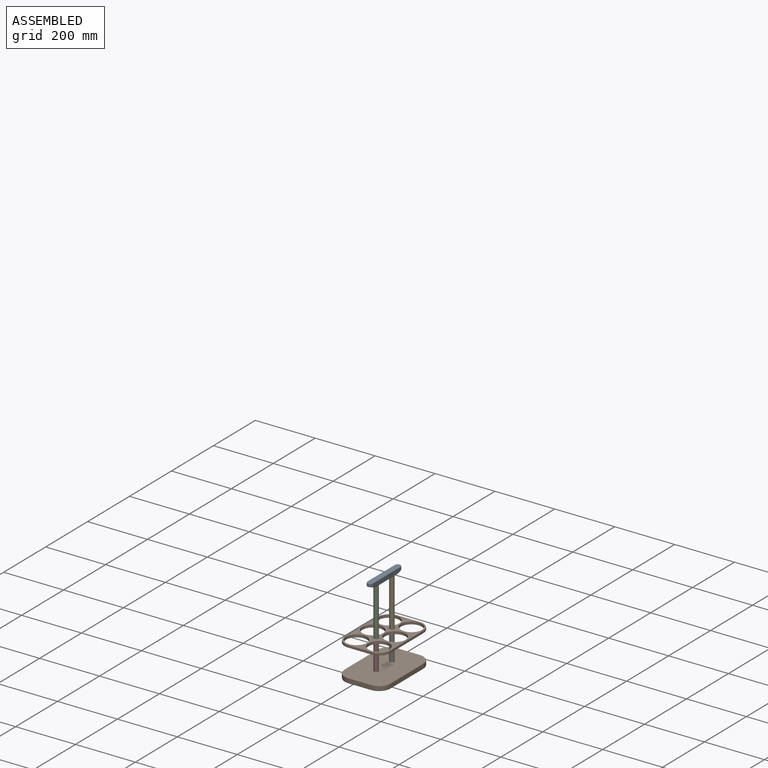
[diagram: assembled view]
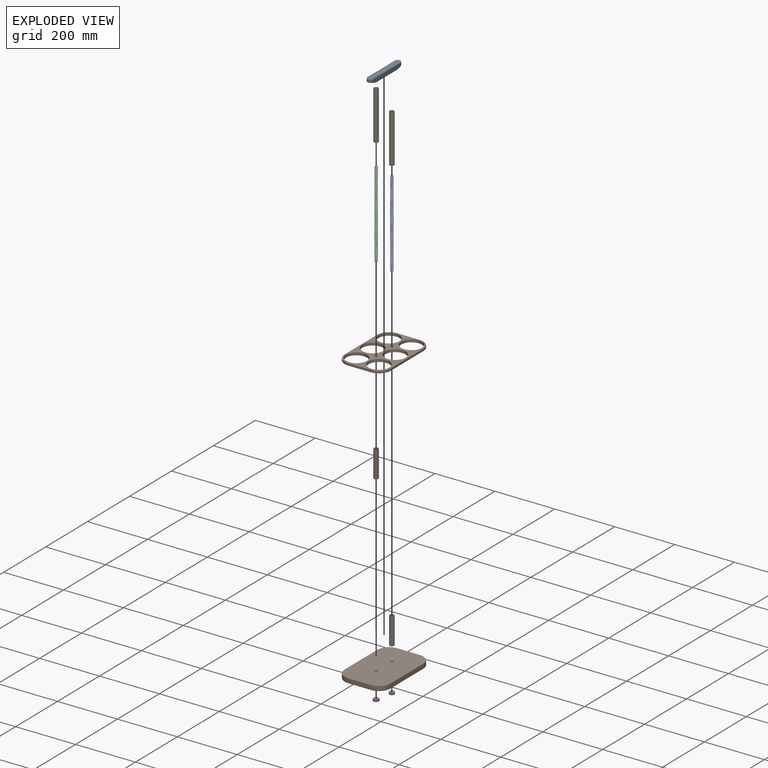
[diagram: exploded view]
GUIDED TOUR — MATED ASSEMBLY (Onshape document 51938ba1268a272d1c737e33, AutoMate assembly 51938ba1268a272d1c737e33_5c9f1a558fc260706982b77c_7cf6c53910ad5884d80d0387_default)

This assembly has 11 components, labeled P0..P10 below (a component is one placed occurrence of a part; the same part can appear more than once), held together by 11 mates. A mate is a constraint between two components; its type names the relative motion it leaves free:
  FASTENED — locks the two components together rigidly (no relative motion),
  SLIDER — leaves translation along the listed axis free.
Axis/direction vectors are unit vectors and 'through' points are millimeter coordinates, both in the assembly's world frame.

MATES
  1. FASTENED "Fastened 1": P8 <-> P1, direction (0.000, 0.000, -1.000) through (129.50, -47.44, -291.53) mm
  2. FASTENED "Fastened 4": P7 <-> P1, direction (0.000, 0.000, -1.000) through (129.50, -122.44, -273.53) mm
  3. FASTENED "Fastened 6": P0 <-> P2, direction (0.000, 0.000, -1.000) through (129.50, -122.44, -2.53) mm
  4. FASTENED "Fastened 10": P2 <-> P3, direction (0.000, 0.000, 1.000) through (129.50, -122.44, -290.33) mm
  5. SLIDER "Slider 2": P8 <-> P9, axis (0.000, 0.000, -1.000) through (129.50, -47.44, -148.81) mm
  6. FASTENED "Fastened 8": P4 <-> P9, direction (0.000, 0.000, -1.000) through (129.50, -47.44, -174.53) mm
  7. FASTENED "Fastened 2": P1 <-> P2, direction (0.000, 0.000, -1.000) through (129.50, -122.44, -291.53) mm
  8. FASTENED "Fastened 9": P5 <-> P8, direction (0.000, 0.000, -1.000) through (129.50, -47.44, -290.33) mm
  9. FASTENED "Fastened 7": P10 <-> P9, direction (0.000, 0.000, -1.000) through (129.50, -122.44, -174.53) mm
  10. FASTENED "Fastened 5": P7 <-> P9, direction (0.000, 0.000, 1.000) through (129.50, -122.44, -183.53) mm
  11. FASTENED "Fastened 3": P6 <-> P1, direction (0.000, 0.000, -1.000) through (129.50, -47.44, -273.53) mm

ASSEMBLY ORDER
  1. P1 — the base component [order heuristic]
  2. P2 — core [order heuristic]
  3. P6 — core [order heuristic]
  4. P5 — core [order heuristic]
  5. P9 — core [order heuristic]
  6. P10 [order verified]
  7. P8 — core [order heuristic]
  8. P0 — core [order heuristic]
  9. P4 — core [order heuristic]
  10. P7 [order verified]
  11. P3 — core [order heuristic]
Order-tag legend:
  [order verified] — this step's position reverses a verified removal order: the component was checked to insert without passing through the ones already placed.
  [order heuristic] — the first 9 components form the assembly's core: parts whose collision-free extraction could not be verified, listed in mate-graph order.

Of the 11 components, 2 carry the full construction recipe — the FeatureScript program that regenerates the part's solid from scratch; the rest are supplied as boundary geometry only.
Each toured component is shown spotlighted twice — in the assembled view, then in the exploded view, where a leader line traces a displaced component back to its assembled socket (saturated green if recipe-attached, orange if geometry-only; every other component desaturated gray) — followed by its recipe or geometry summary and the mates that hold it.
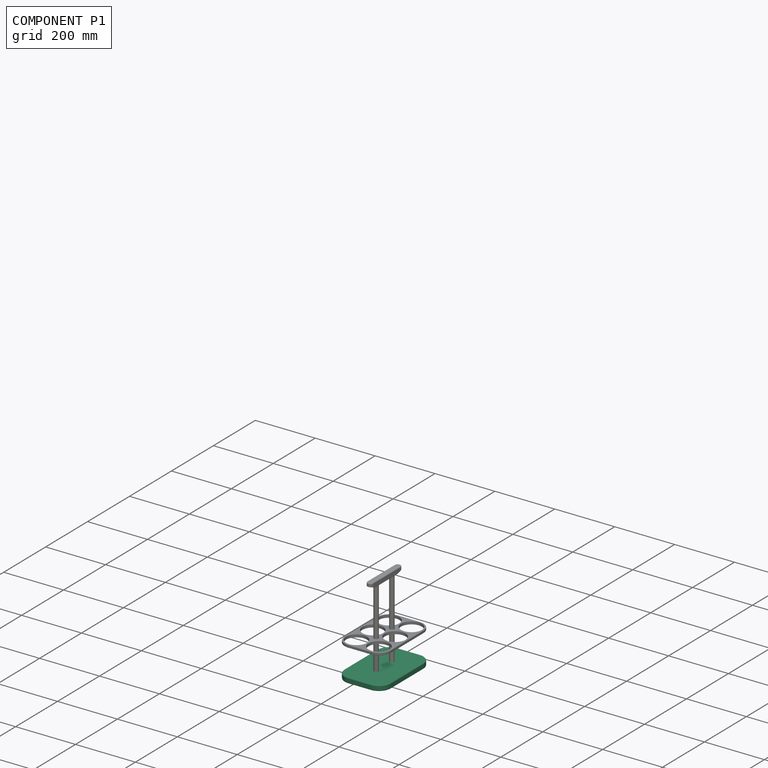
[diagram: component P1 — assembled]
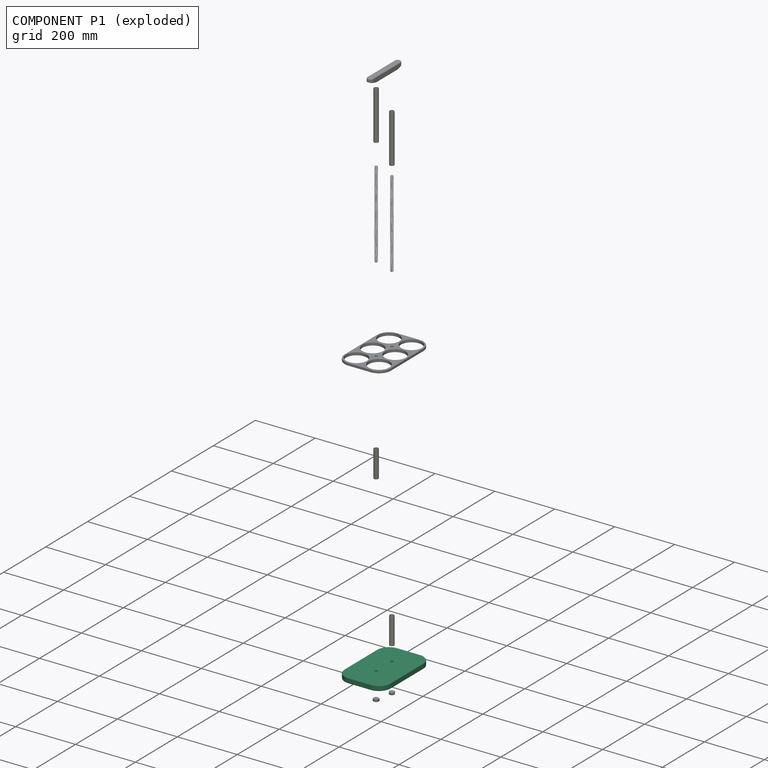
[diagram: component P1 — exploded]
COMPONENT P1 — recipe-attached (CADFS 00235318, mesh-verified: the recipe's output STEP matches this component's geometry to below the mesh-comparison resolution (tessellation chordal tolerance ~0.423 mm)).
Held by: FASTENED mate "Fastened 1" to P8; FASTENED mate "Fastened 4" to P7; FASTENED mate "Fastened 2" to P2; FASTENED mate "Fastened 3" to P6.
Construction recipe (FeatureScript — the CAD program that rebuilds this solid; sketch coordinates are in the units given by the * unit suffixes, e.g. mm):

FeatureScript 1511;
import(path : "onshape/std/geometry.fs", version : "1511.0");
import(path : "onshape/std/common.fs", version : "1511.0");
const mm = millimeter;
const VERTEX = EntityType.VERTEX;
const EDGE = EntityType.EDGE;
const FACE = EntityType.FACE;
const BODY = EntityType.BODY;
function v(x, y){return vector(x, y);}
function OD(order){return orderDisambiguation(order);}
function OSD(set){return originalSetDisambiguation(set);}
function TD(topology){return topologyDisambiguation(topology);}
function TDD(query){return trueDependencyDisambiguation(query);}
function sQuery(a, b, c) {return sketchEntityQuery(a, b, c);}

annotation { "Feature Type Name" : "Feature", "Feature Type Description" : "" }
export const myFeature = defineFeature(function(context is Context, id is Id, definition is map)
    precondition{}
    {
        {
            var Q0;
            Q0=qCreatedBy(makeId("Top.planeOp"),FACE);
            var sketch = newSketch(context, id + "F0", { "sketchPlane" : qUnion([Q0])});
            skLineSegment(sketch, "E0.bottom", {"start": v(-32.73, -118.2) * mm, "end": v(42.27, -118.2) * mm});
            skLineSegment(sketch, "E0.top", {"start": v(-32.73, 116.8) * mm, "end": v(42.27, 116.8) * mm});
            skLineSegment(sketch, "E0.left", {"start": v(-72.73, -78.2) * mm, "end": v(-72.73, 76.8) * mm});
            skLineSegment(sketch, "E0.right", {"start": v(82.27, -78.2) * mm, "end": v(82.27, 76.8) * mm});
            skPoint(sketch, "E1.visualSharp", {"position": v(-72.73, 116.8) * mm});
            skArc(sketch, "E1.filletArc", {"start": v(-32.73, 116.8) * mm, "mid": v(-61.02, 105.09) * mm, "end": v(-72.73, 76.8) * mm});
            skPoint(sketch, "E2.visualSharp", {"position": v(82.27, 116.8) * mm});
            skArc(sketch, "E2.filletArc", {"start": v(82.27, 76.8) * mm, "mid": v(70.55, 105.09) * mm, "end": v(42.27, 116.8) * mm});
            skPoint(sketch, "E3.visualSharp", {"position": v(82.27, -118.2) * mm});
            skArc(sketch, "E3.filletArc", {"start": v(42.27, -118.2) * mm, "mid": v(70.55, -106.48) * mm, "end": v(82.27, -78.2) * mm});
            skPoint(sketch, "E4.visualSharp", {"position": v(-72.73, -118.2) * mm});
            skArc(sketch, "E4.filletArc", {"start": v(-72.73, -78.2) * mm, "mid": v(-61.02, -106.48) * mm, "end": v(-32.73, -118.2) * mm});
            skPoint(sketch, "E5.centerSnap0", {"position": v(-72.73, -0.7) * mm});
            skCircle(sketch, "E6", {"center": v(4.77, 36.8) * mm, "radius": 5 * mm});
            skPoint(sketch, "E6.centerSnap0", {"position": v(4.77, 116.8) * mm});
            skCircle(sketch, "E7", {"center": v(4.77, -38.2) * mm, "radius": 5 * mm});
            skSolve(sketch);
        }
        {
            var Q0;
            Q0=makeQuery(id+"F0.imprint","IMPRINT",FACE,{"disambiguationData":[TD([[makeQuery(id+"F0.imprint","IMPRINT",EDGE,{"derivedFrom":sQuery(id+"F0.wireOp",EDGE,"E0.bottom")}),1.0]])]});
            extrude(context, id + "F1", {"entities" : qUnion([Q0]), "depth" : 18 * mm});
        }
        {
            var Q0;
            Q0=makeQuery(id+"F1.opExtrude","CAP_FACE",FACE,{"disambiguationData":[OSD([sQuery(id+"F0.wireOp",EDGE,"E0.bottom"),sQuery(id+"F0.wireOp",EDGE,"E0.top"),sQuery(id+"F0.wireOp",EDGE,"E0.left"),sQuery(id+"F0.wireOp",EDGE,"E0.right"),sQuery(id+"F0.wireOp",EDGE,"E1.filletArc"),sQuery(id+"F0.wireOp",EDGE,"E2.filletArc"),sQuery(id+"F0.wireOp",EDGE,"E3.filletArc"),sQuery(id+"F0.wireOp",EDGE,"E4.filletArc"),sQuery(id+"F0.wireOp",EDGE,"E6"),sQuery(id+"F0.wireOp",EDGE,"E7")])],"isStart":true});
            var sketch = newSketch(context, id + "F2", { "sketchPlane" : qUnion([Q0])});
            skCircle(sketch, "E8", {"center": v(4.77, 38.2) * mm, "radius": 10 * mm});
            skCircle(sketch, "E9", {"center": v(4.77, -36.8) * mm, "radius": 10 * mm});
            skSolve(sketch);
        }
        {
            var Q0;
            Q0 = qSketchRegion(id + "F2", true);
            extrude(context, id + "F3", {"entities" : qUnion([Q0]), "operationType" : NewBodyOperationType.REMOVE, "oppositeDirection" : true, "depth" : 10 * mm});
        }
        {
            var Q0;
            Q0=makeQuery(id+"F1.opExtrude","CAP_EDGE",EDGE,{"disambiguationData":[OSD([sQuery(id+"F0.wireOp",EDGE,"E0.right")])],"isStart":false});
            var Q1;
            Q1=makeQuery(id+"F1.opExtrude","CAP_EDGE",EDGE,{"disambiguationData":[OSD([sQuery(id+"F0.wireOp",EDGE,"E0.right")])],"isStart":true});
            fillet(context, id + "F4", {"entities" : qUnion([Q0, Q1]), "radius" : 3 * mm, "tangentPropagation" : true, "allowEdgeOverflow" : false});
        }
    });
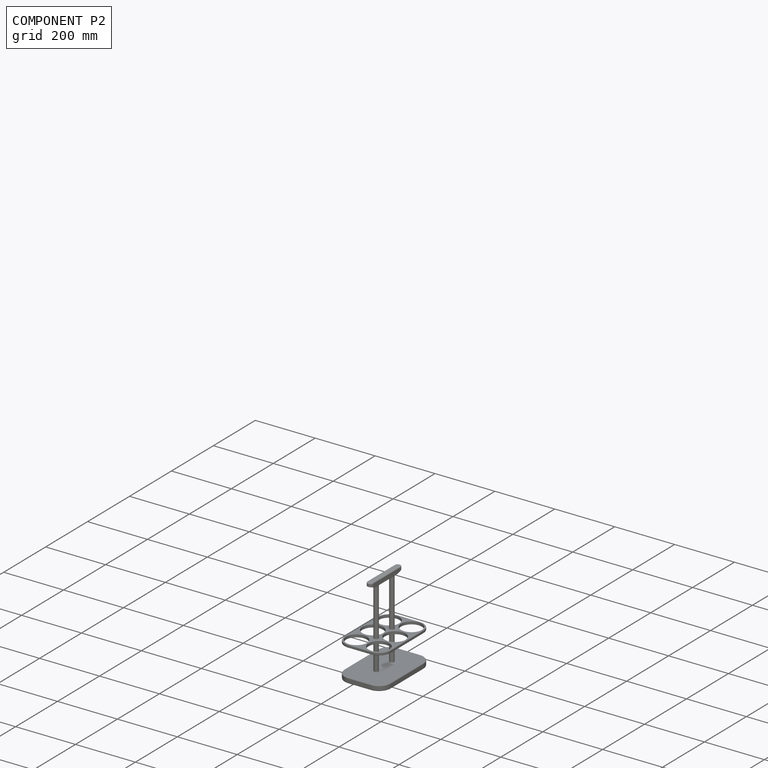
[diagram: component P2 — assembled]
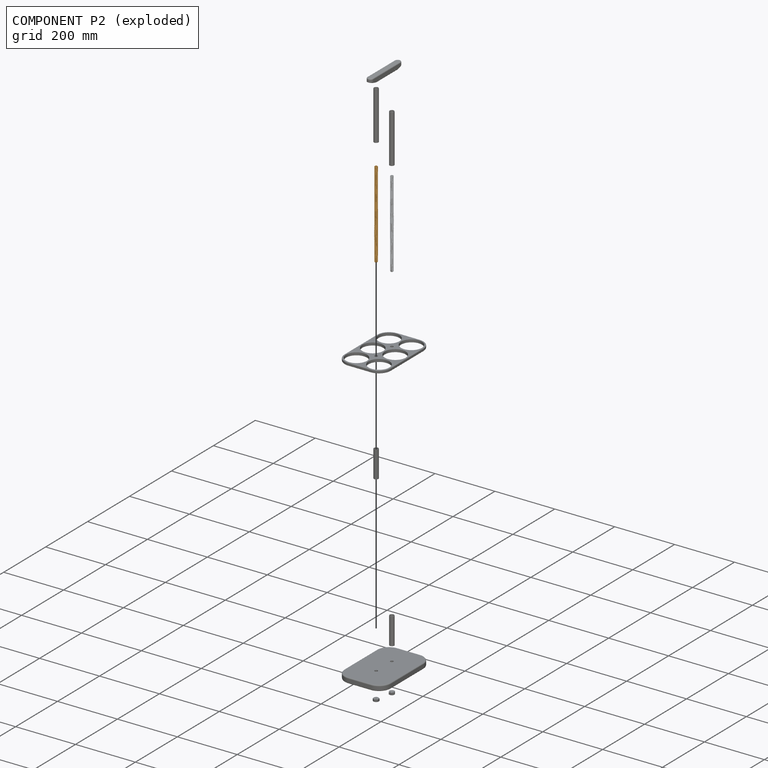
[diagram: component P2 — exploded]
COMPONENT P2 — geometry summary (no construction recipe available for this part):
  bounding box: 290.3 x 11.6 x 10.0 mm
  B-rep topology: 1 solid, 22 faces, 118 edges
  volume: 16243 mm^3 (48% of its bounding box)
  symmetry: 4-fold rotationally symmetric about the z axis; mirror-symmetric across its x mid-plane, y mid-plane
Held by: FASTENED mate "Fastened 6" to P0; FASTENED mate "Fastened 10" to P3; FASTENED mate "Fastened 2" to P1.
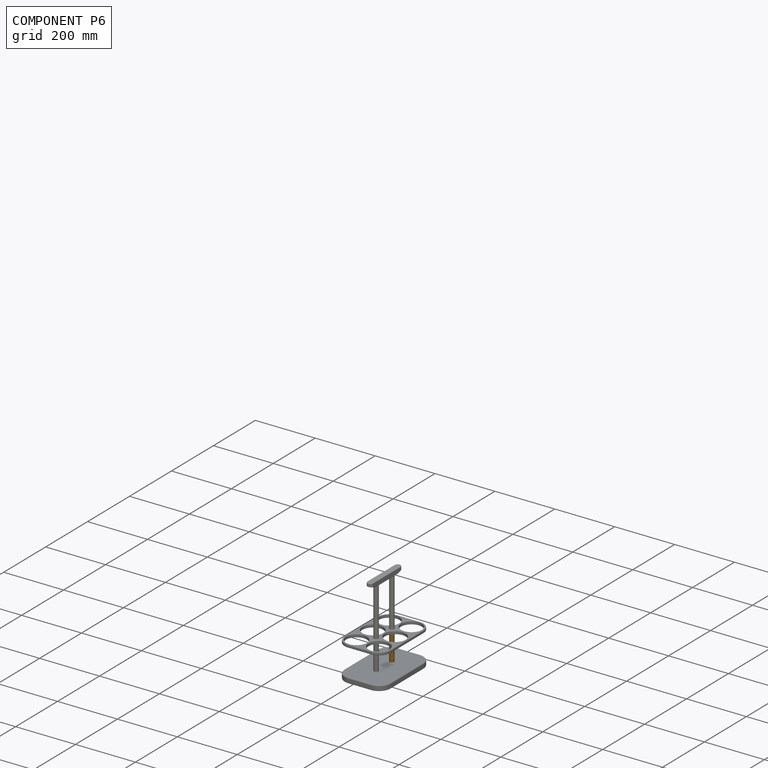
[diagram: component P6 — assembled]
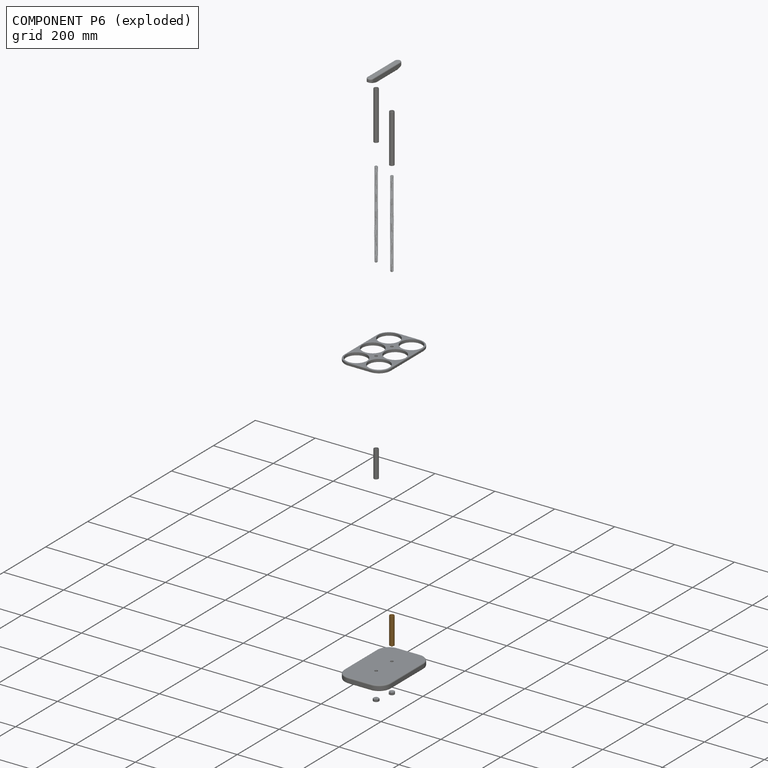
[diagram: component P6 — exploded]
COMPONENT P6 — geometry summary (no construction recipe available for this part):
  bounding box: 90.0 x 15.0 x 15.0 mm
  B-rep topology: 1 solid, 4 faces, 12 edges
  volume: 3958 mm^3 (20% of its bounding box)
  symmetry: 2-fold rotationally symmetric about the x axis; 2-fold rotationally symmetric about the y axis; revolution-symmetric about the z axis through its bounding-box center; mirror-symmetric across its x mid-plane, y mid-plane, z mid-plane
Held by: FASTENED mate "Fastened 3" to P1.
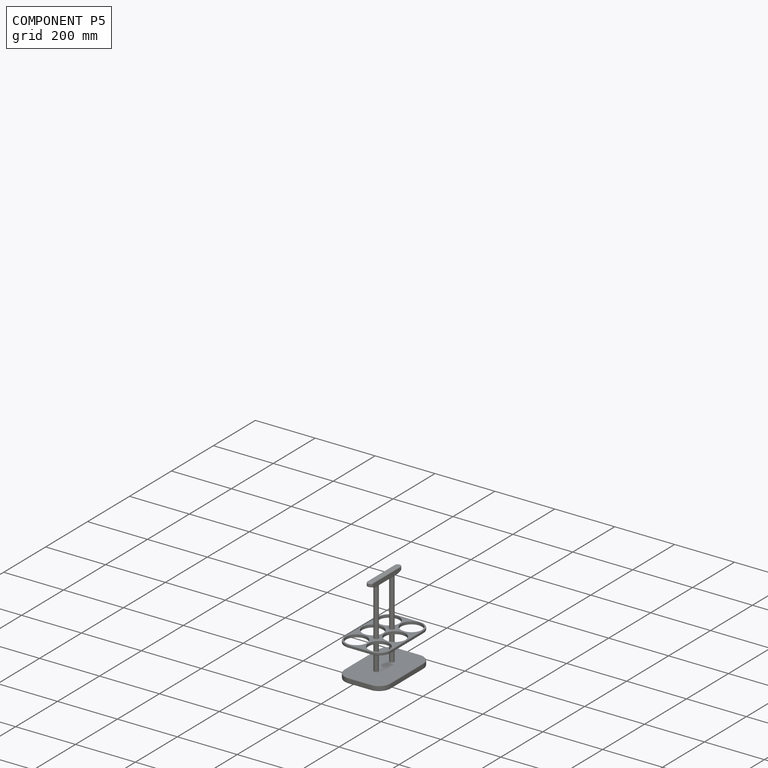
[diagram: component P5 — assembled]
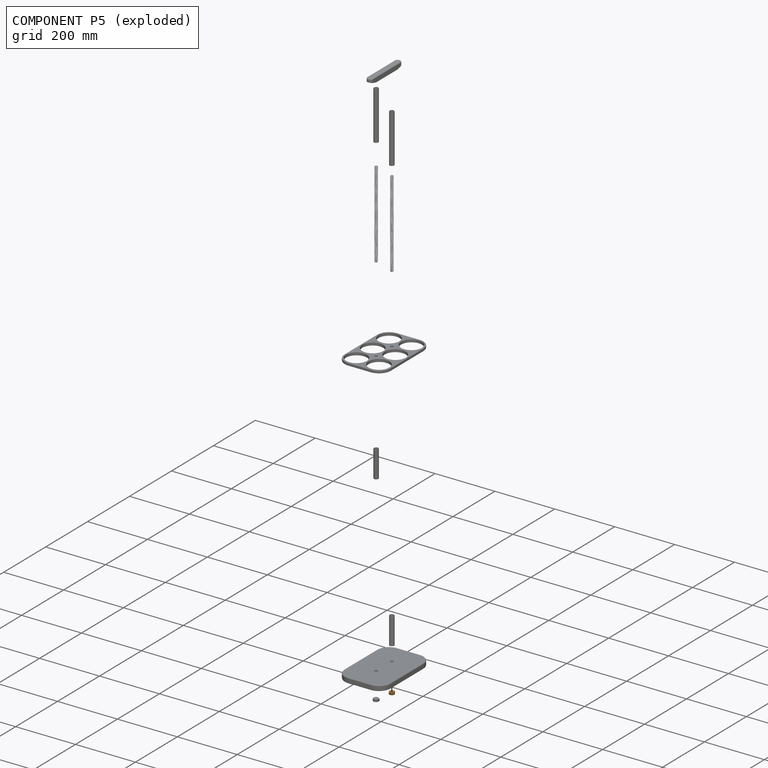
[diagram: component P5 — exploded]
COMPONENT P5 — geometry summary (no construction recipe available for this part):
  bounding box: 18.9 x 18.9 x 9.5 mm
  B-rep topology: 1 solid, 26 faces, 120 edges
  volume: 1353 mm^3 (40% of its bounding box)
Held by: FASTENED mate "Fastened 9" to P8.
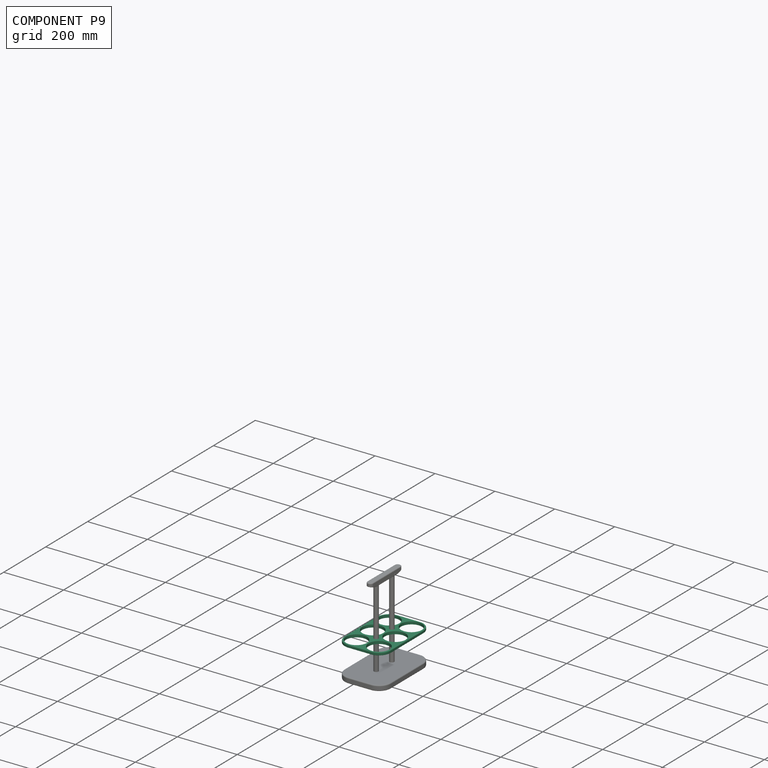
[diagram: component P9 — assembled]
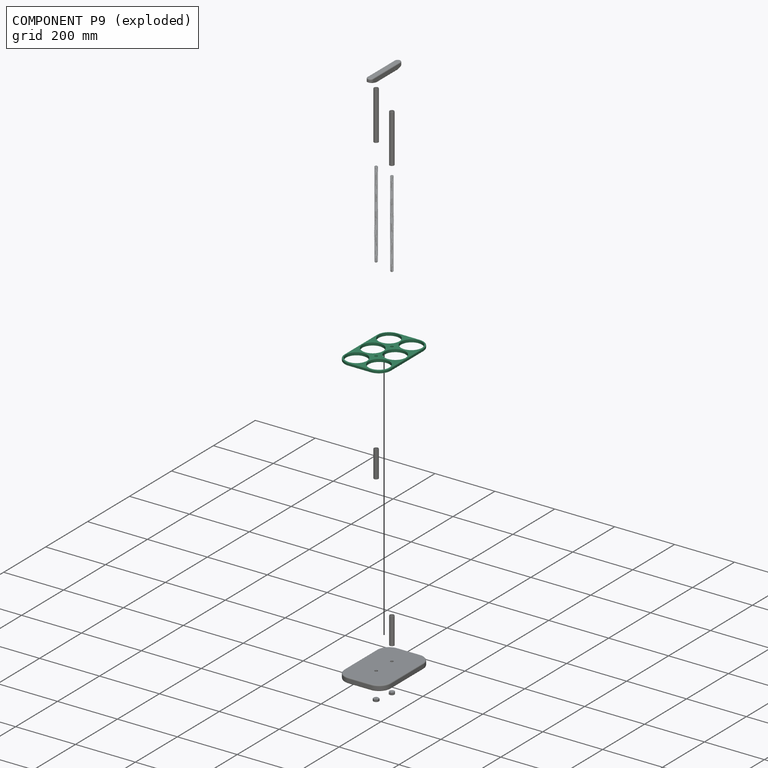
[diagram: component P9 — exploded]
COMPONENT P9 — recipe-attached (CADFS 00235315, mesh-verified: the recipe's output STEP matches this component's geometry to below the mesh-comparison resolution (tessellation chordal tolerance ~0.422 mm)).
Held by: SLIDER mate "Slider 2" to P8; FASTENED mate "Fastened 8" to P4; FASTENED mate "Fastened 7" to P10; FASTENED mate "Fastened 5" to P7.
Construction recipe (FeatureScript — the CAD program that rebuilds this solid; sketch coordinates are in the units given by the * unit suffixes, e.g. mm):

FeatureScript 1511;
import(path : "onshape/std/geometry.fs", version : "1511.0");
import(path : "onshape/std/common.fs", version : "1511.0");
const mm = millimeter;
const VERTEX = EntityType.VERTEX;
const EDGE = EntityType.EDGE;
const FACE = EntityType.FACE;
const BODY = EntityType.BODY;
function v(x, y){return vector(x, y);}
function OD(order){return orderDisambiguation(order);}
function OSD(set){return originalSetDisambiguation(set);}
function TD(topology){return topologyDisambiguation(topology);}
function TDD(query){return trueDependencyDisambiguation(query);}
function sQuery(a, b, c) {return sketchEntityQuery(a, b, c);}

annotation { "Feature Type Name" : "Feature", "Feature Type Description" : "" }
export const myFeature = defineFeature(function(context is Context, id is Id, definition is map)
    precondition{}
    {
        {
            var Q0;
            Q0=qCreatedBy(makeId("Top.planeOp"),FACE);
            var sketch = newSketch(context, id + "F0", { "sketchPlane" : qUnion([Q0])});
            skLineSegment(sketch, "E0.bottom", {"start": v(40, 0) * mm, "end": v(115, 0) * mm});
            skLineSegment(sketch, "E0.top", {"start": v(40, 235) * mm, "end": v(115, 235) * mm});
            skLineSegment(sketch, "E0.left", {"start": v(0, 40) * mm, "end": v(0, 195) * mm});
            skLineSegment(sketch, "E0.right", {"start": v(155, 40) * mm, "end": v(155, 195) * mm});
            skPoint(sketch, "E1.visualSharp", {"position": v(0, 235) * mm});
            skArc(sketch, "E1.filletArc", {"start": v(40, 235) * mm, "mid": v(11.72, 223.28) * mm, "end": v(0, 195) * mm});
            skPoint(sketch, "E2.visualSharp", {"position": v(155, 235) * mm});
            skArc(sketch, "E2.filletArc", {"start": v(155, 195) * mm, "mid": v(143.28, 223.28) * mm, "end": v(115, 235) * mm});
            skPoint(sketch, "E3.visualSharp", {"position": v(155, 0) * mm});
            skArc(sketch, "E3.filletArc", {"start": v(115, 0) * mm, "mid": v(143.28, 11.72) * mm, "end": v(155, 40) * mm});
            skPoint(sketch, "E4.visualSharp", {"position": v(0, 0) * mm});
            skArc(sketch, "E4.filletArc", {"start": v(0, 40) * mm, "mid": v(11.72, 11.72) * mm, "end": v(40, 0) * mm});
            skCircle(sketch, "E5", {"center": v(40, 195) * mm, "radius": 35 * mm});
            skCircle(sketch, "E6", {"center": v(115, 195) * mm, "radius": 35 * mm});
            skCircle(sketch, "E7", {"center": v(40, 40) * mm, "radius": 35 * mm});
            skCircle(sketch, "E8", {"center": v(115, 40) * mm, "radius": 35 * mm});
            skCircle(sketch, "E9", {"center": v(40, 117.5) * mm, "radius": 35 * mm});
            skPoint(sketch, "E9.centerSnap0", {"position": v(0, 117.5) * mm});
            skCircle(sketch, "E10", {"center": v(115, 117.5) * mm, "radius": 35 * mm});
            skCircle(sketch, "E11", {"center": v(77.5, 155) * mm, "radius": 5 * mm});
            skPoint(sketch, "E11.centerSnap0", {"position": v(77.5, 235) * mm});
            skCircle(sketch, "E12", {"center": v(77.5, 80) * mm, "radius": 5 * mm});
            skSolve(sketch);
        }
        {
            var Q0;
            Q0=makeQuery(id+"F0.imprint","IMPRINT",FACE,{"disambiguationData":[TD([[makeQuery(id+"F0.imprint","IMPRINT",EDGE,{"derivedFrom":sQuery(id+"F0.wireOp",EDGE,"E0.bottom")}),1.0]])]});
            extrude(context, id + "F1", {"entities" : qUnion([Q0]), "depth" : 9 * mm});
        }
        {
            var Q0;
            Q0=makeQuery(id+"F1.opExtrude","CAP_EDGE",EDGE,{"disambiguationData":[OSD([sQuery(id+"F0.wireOp",EDGE,"E0.left")])],"isStart":false});
            var Q1;
            Q1=makeQuery(id+"F1.opExtrude","CAP_EDGE",EDGE,{"disambiguationData":[OSD([sQuery(id+"F0.wireOp",EDGE,"E0.bottom")])],"isStart":true});
            fillet(context, id + "F2", {"entities" : qUnion([Q0, Q1]), "radius" : 1.5 * mm, "tangentPropagation" : true, "allowEdgeOverflow" : false});
        }
    });
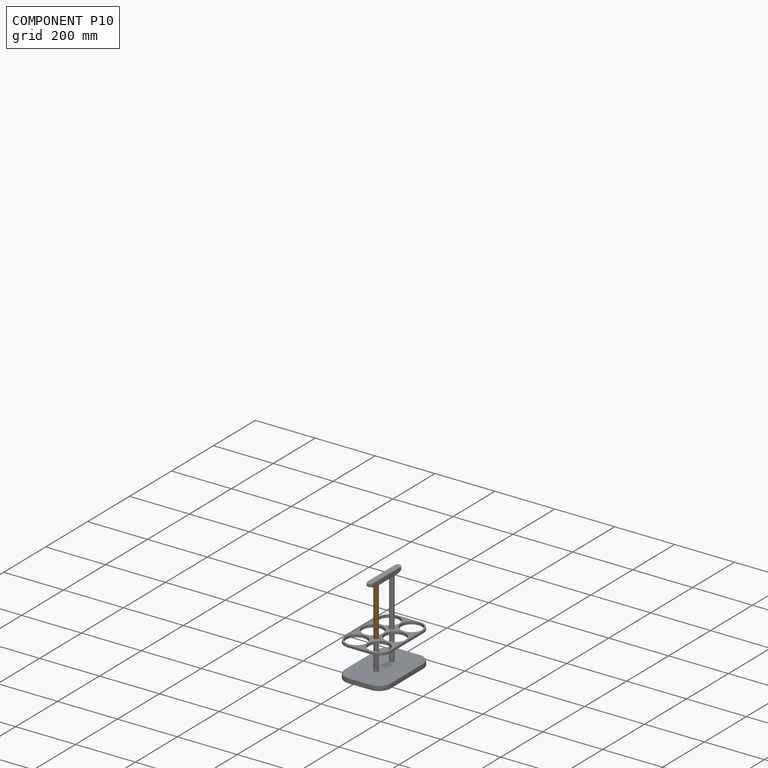
[diagram: component P10 — assembled]
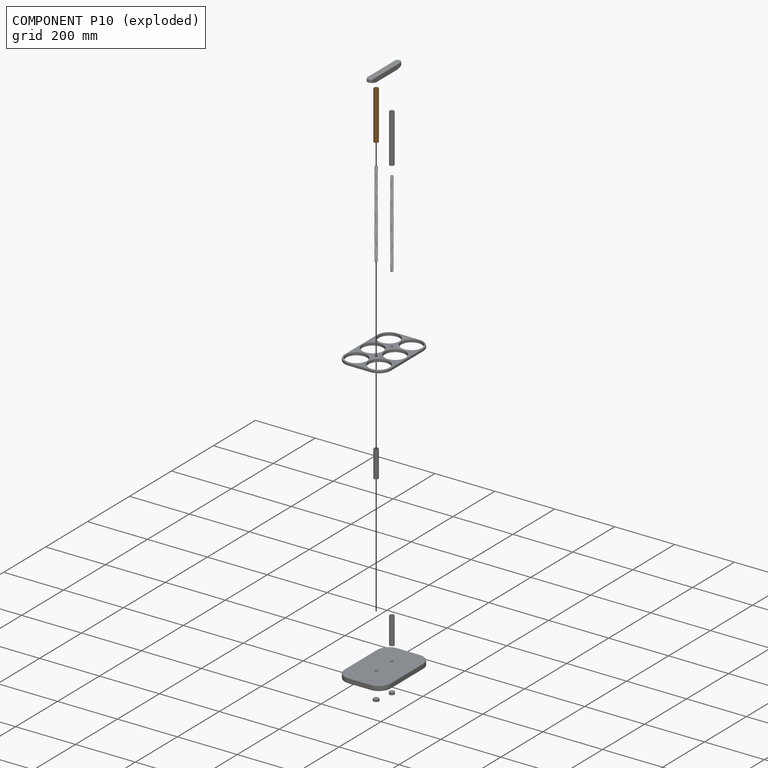
[diagram: component P10 — exploded]
COMPONENT P10 — geometry summary (no construction recipe available for this part):
  bounding box: 162.0 x 15.0 x 15.0 mm
  B-rep topology: 1 solid, 4 faces, 12 edges
  volume: 7125 mm^3 (20% of its bounding box)
  symmetry: 2-fold rotationally symmetric about the x axis; 2-fold rotationally symmetric about the y axis; revolution-symmetric about the z axis through its bounding-box center; mirror-symmetric across its x mid-plane, y mid-plane, z mid-plane
Held by: FASTENED mate "Fastened 7" to P9.
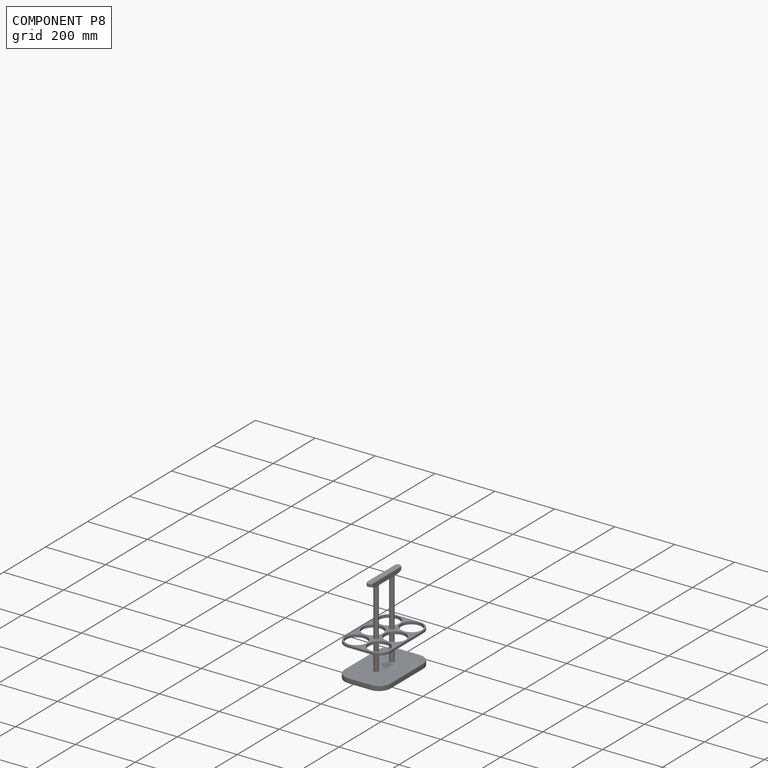
[diagram: component P8 — assembled]
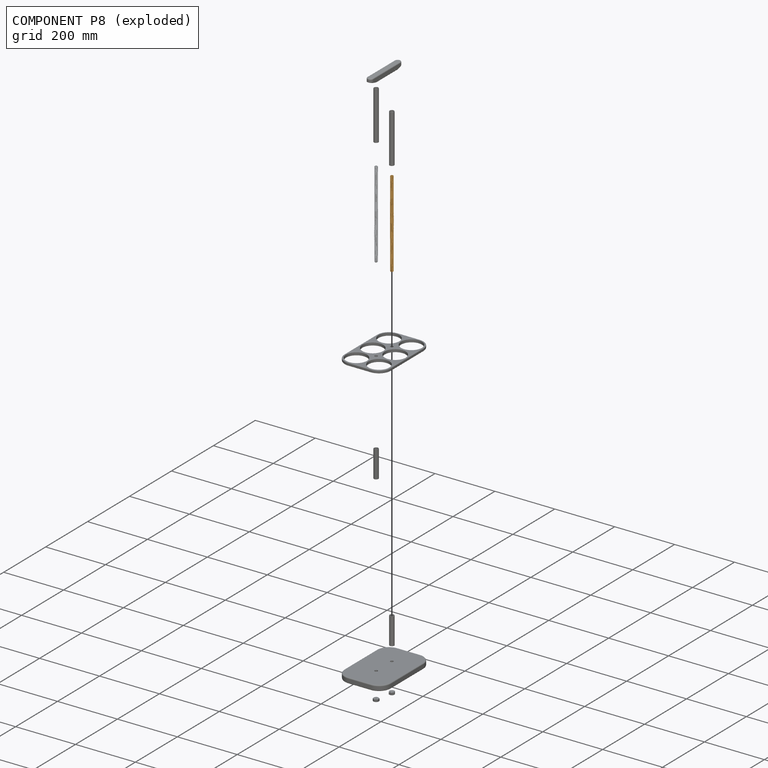
[diagram: component P8 — exploded]
COMPONENT P8 — geometry summary (no construction recipe available for this part):
  bounding box: 290.3 x 11.6 x 10.0 mm
  B-rep topology: 1 solid, 22 faces, 118 edges
  volume: 16243 mm^3 (48% of its bounding box)
  symmetry: 4-fold rotationally symmetric about the z axis; mirror-symmetric across its x mid-plane, y mid-plane
Held by: FASTENED mate "Fastened 1" to P1; SLIDER mate "Slider 2" to P9; FASTENED mate "Fastened 9" to P5.
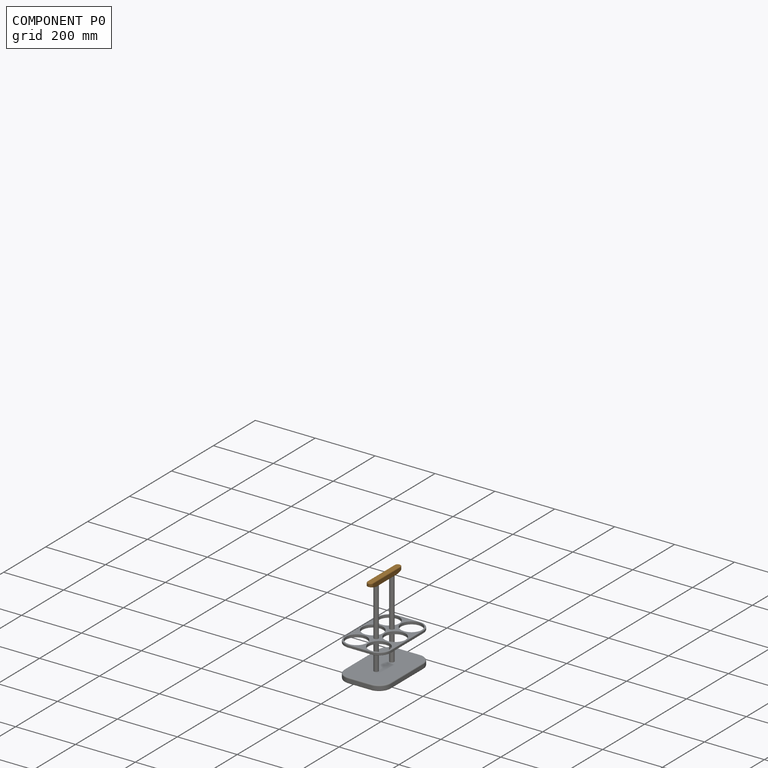
[diagram: component P0 — assembled]
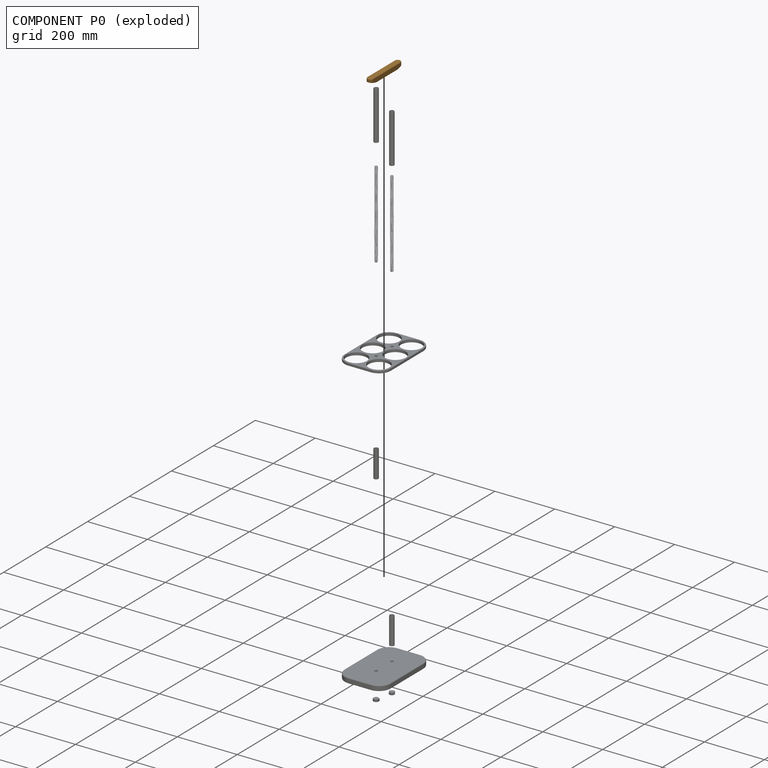
[diagram: component P0 — exploded]
COMPONENT P0 — geometry summary (no construction recipe available for this part):
  bounding box: 151.6 x 21.6 x 18.0 mm
  B-rep topology: 1 solid, 28 faces, 138 edges
  volume: 47335 mm^3 (80% of its bounding box)
  symmetry: 2-fold rotationally symmetric about the z axis; mirror-symmetric across its x mid-plane, y mid-plane
Held by: FASTENED mate "Fastened 6" to P2.
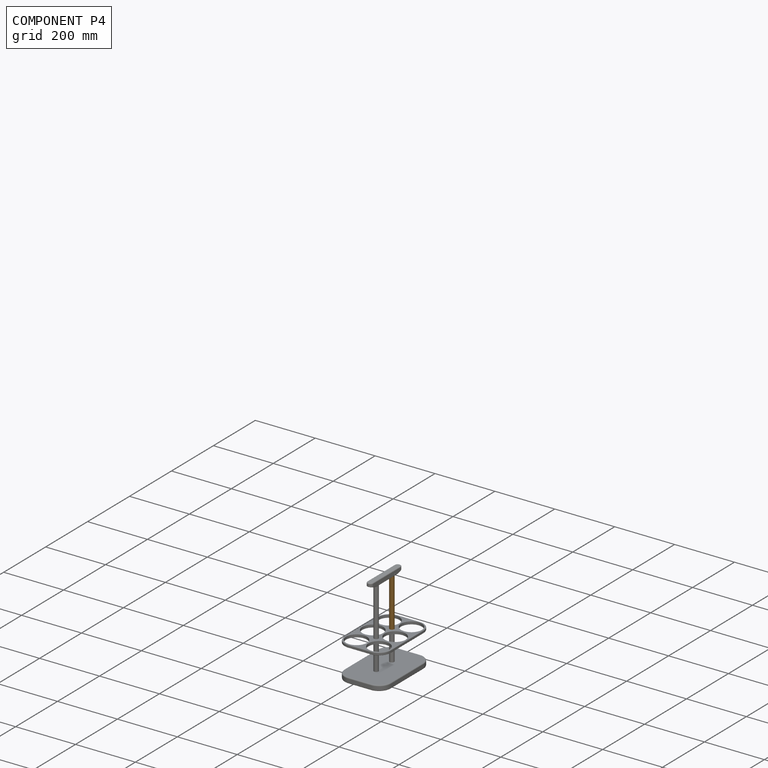
[diagram: component P4 — assembled]
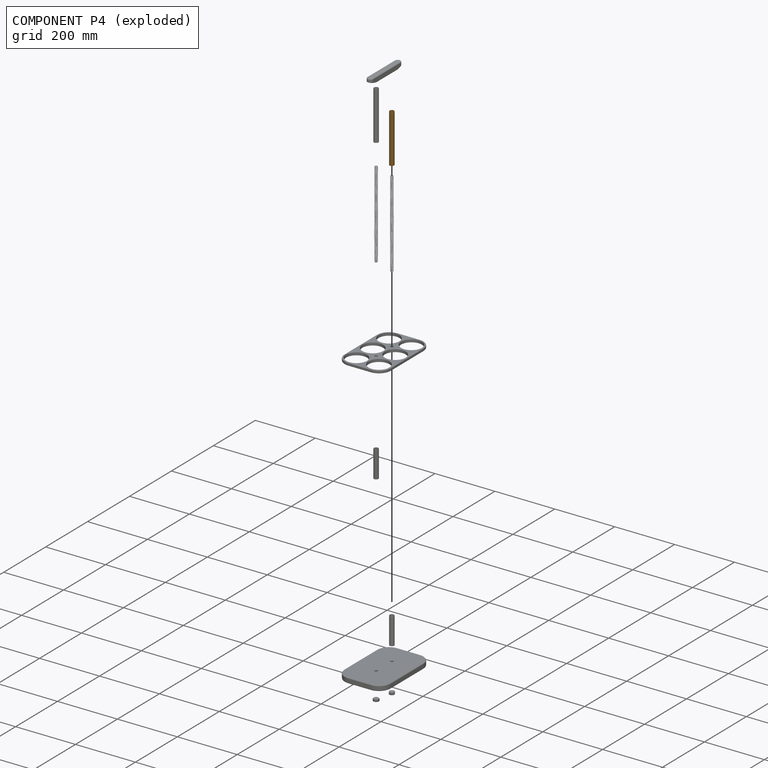
[diagram: component P4 — exploded]
COMPONENT P4 — geometry summary (no construction recipe available for this part):
  bounding box: 162.0 x 15.0 x 15.0 mm
  B-rep topology: 1 solid, 4 faces, 12 edges
  volume: 7125 mm^3 (20% of its bounding box)
  symmetry: 2-fold rotationally symmetric about the x axis; 2-fold rotationally symmetric about the y axis; revolution-symmetric about the z axis through its bounding-box center; mirror-symmetric across its x mid-plane, y mid-plane, z mid-plane
Held by: FASTENED mate "Fastened 8" to P9.
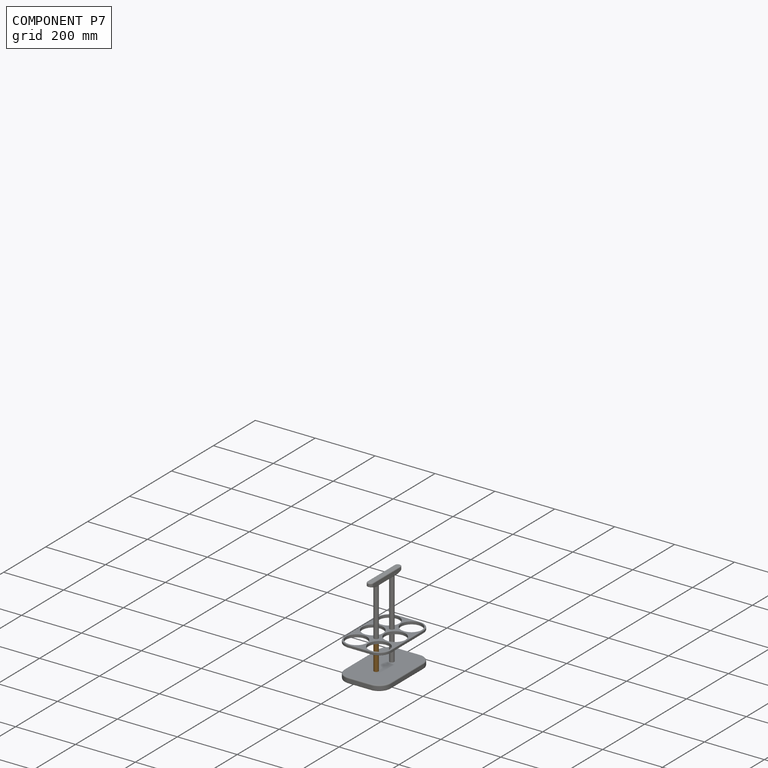
[diagram: component P7 — assembled]
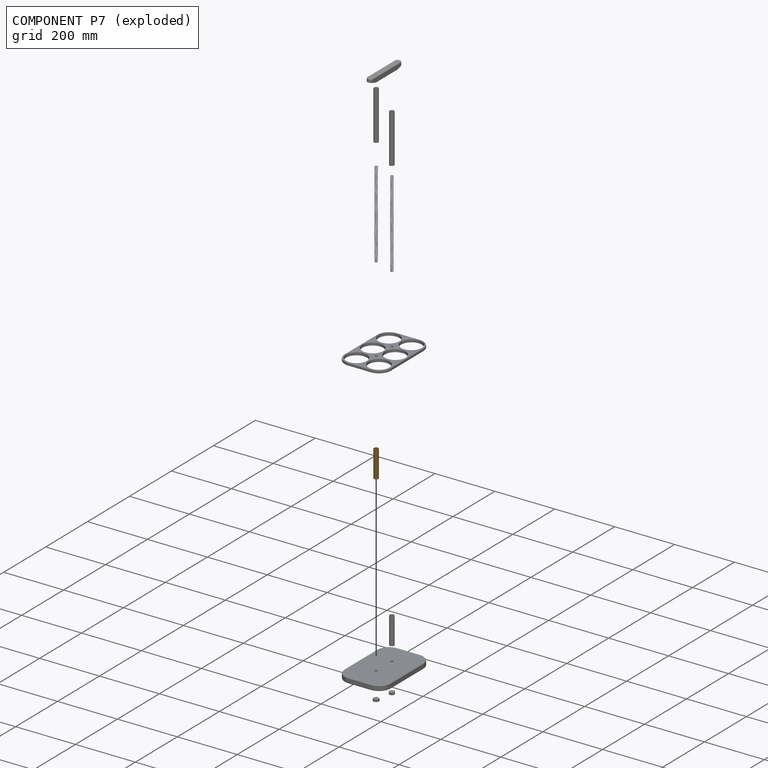
[diagram: component P7 — exploded]
COMPONENT P7 — geometry summary (no construction recipe available for this part):
  bounding box: 90.0 x 15.0 x 15.0 mm
  B-rep topology: 1 solid, 4 faces, 12 edges
  volume: 3958 mm^3 (20% of its bounding box)
  symmetry: 2-fold rotationally symmetric about the x axis; 2-fold rotationally symmetric about the y axis; revolution-symmetric about the z axis through its bounding-box center; mirror-symmetric across its x mid-plane, y mid-plane, z mid-plane
Held by: FASTENED mate "Fastened 4" to P1; FASTENED mate "Fastened 5" to P9.
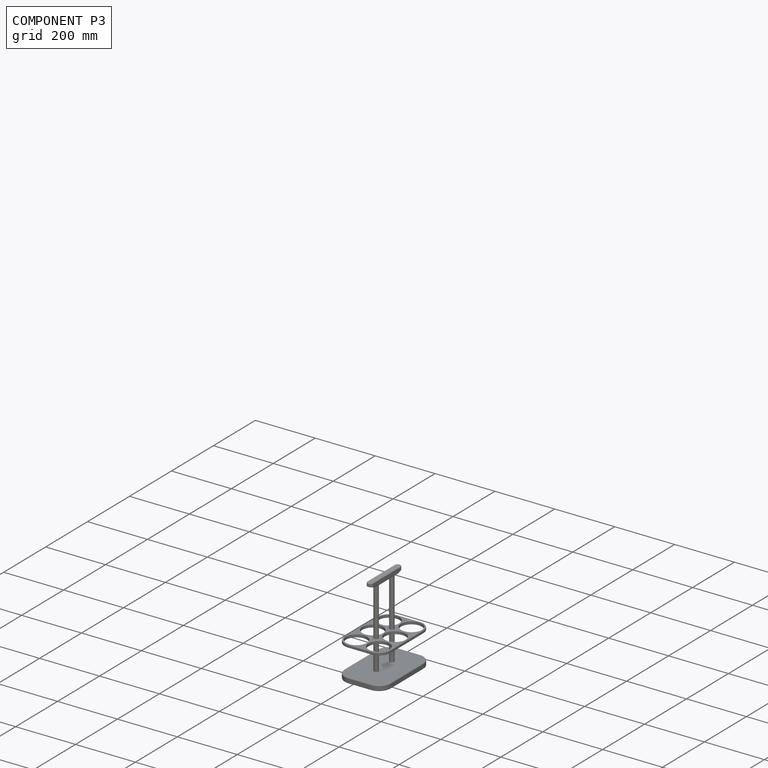
[diagram: component P3 — assembled]
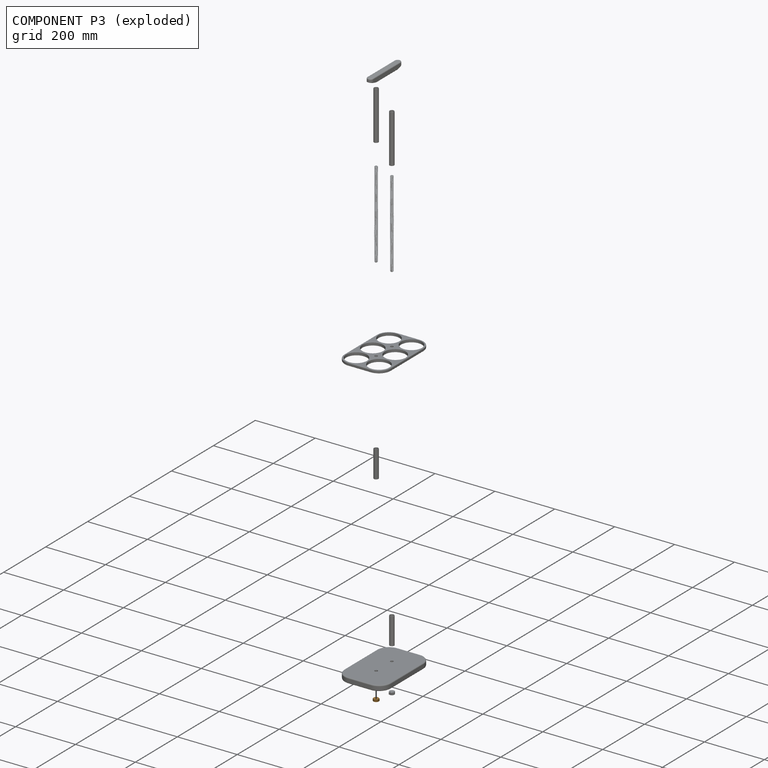
[diagram: component P3 — exploded]
COMPONENT P3 — geometry summary (no construction recipe available for this part):
  bounding box: 18.9 x 18.9 x 9.5 mm
  B-rep topology: 1 solid, 26 faces, 120 edges
  volume: 1353 mm^3 (40% of its bounding box)
Held by: FASTENED mate "Fastened 10" to P2.
PROVENANCE & LICENSES
Assembly (occurrences, transforms, mates, per-part STEP geometry): AutoMate dataset, Zenodo record 7776208, CC0.
Construction recipes: CADFS (HuggingFace VladPyatov/CADFS, CC-BY-4.0, layered over the ABC dataset), FeatureScript reconstruction programs keyed by ABC model id.
Join: ABC meta listings map ABC model id -> Onshape documentId; within a shared document, parts are matched by geometric signature (bounding-box dims + volume at 0.1% relative tolerance, exact B-rep face/solid counts).
Verification: 2 of this assembly's 11 components carry a recipe attachment, and every attachment is mesh-verified: the CADFS STEP and the AutoMate member STEP were compared as meshes in their shared local frame (symmetric sampled-point-to-mesh distance); worst across the 2 attachments: below the mesh-comparison resolution (tessellation chordal tolerance ~0.423 mm) on a 282 mm part.
Renders: orthographic iso camera (az 35 / el 25); the floor grid conveys scale (grid pitch printed in each image; no ruler). In the exploded view each component is displaced by its stored offset vector: the offsets alone carry the explosion direction (mate normal/axis signs are not orientation cues and do not encode it), and separation distances are assigned per mate-chain, not proportionally to assembly-order depth.
